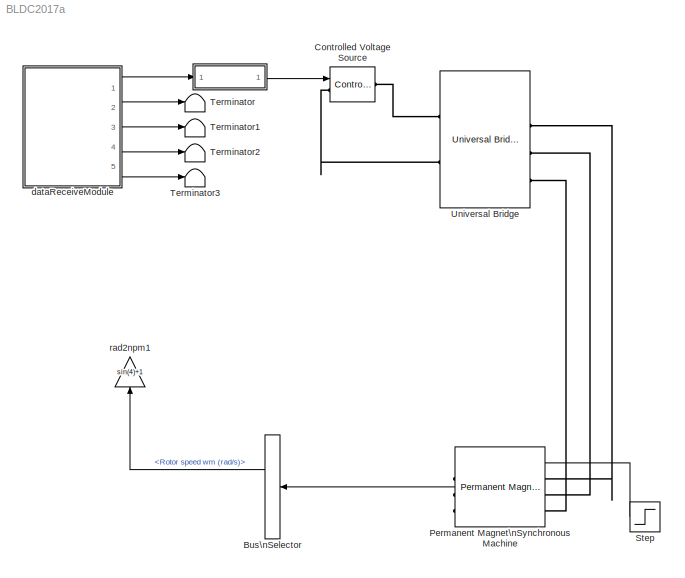
MODEL BLDC2017a
KIND model
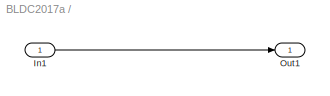
BLOCK [SubSystem]  
  Ports = [1, 1]
  SID = 29
BLOCK [Inport]  /In1
  SID = 30
BLOCK [Outport]  /Out1
  SID = 31
BLOCK [BusSelector] Bus\nSelector
  OutputSignals = Rotor speed wm (rad/s),Electromagnetic torque Te (N*m)
  Ports = [1, 2]
  SID = 44
BLOCK [Reference] Controlled Voltage Source  REF=powerlib/Electrical Sources/Controlled Voltage Source
  Amplitude = 0
  Frequency = 0
  Initialize = on
  Measurements = None
  Phase = 0
  Ports = [1, 0, 0, 0, 0, 1, 1]
  RTWMemSecDataConstants = Inherit from model
  RTWMemSecDataInternal = Inherit from model
  RTWMemSecDataParameters = Inherit from model
  RTWMemSecFuncExecute = Inherit from model
  RTWMemSecFuncInitTerm = Inherit from model
  SID = 37
  SourceBlock = powerlib/Electrical Sources/Controlled Voltage Source
  SourceType = Controlled Voltage Source
  Source_Type = AC
BLOCK [Reference] Permanent Magnet\nSynchronous Machine  REF=powerlib/Machines/Permanent Magnet Synchronous Machine
  Flat = 120
  Flux = 0.1194
  FluxDistribution = Sinusoidal
  Inductance = 8.5e-3
  InitialConditions = [0,0, 0,0]
  InitialConditions5ph = [0 0 0 0 0 0]
  IterativeDiscreteModel = Trapezoidal non iterative
  La = 0.000395
  MachineConstant = Flux linkage established by magnets (V.s)
  MeasurementBus = off
  Mechanical = [0.0027 0.0004924 4 0]
  MechanicalLoad = Torque Tm
  NbPhases = 3
  PolePairs = 4
  Ports = [1, 1, 0, 0, 0, 3]
  PresetModel = No
  RTWMemSecDataConstants = Inherit from model
  RTWMemSecDataInternal = Inherit from model
  RTWMemSecDataParameters = Inherit from model
  RTWMemSecFuncExecute = Inherit from model
  RTWMemSecFuncInitTerm = Inherit from model
  RefAngle = 90 degrees behind phase A axis (modified Park)
  Resistance = 0.0485
  RotorType = Round
  SID = 40
  ShowDetailedParameters = on
  SourceBlock = powerlib/Machines/Permanent Magnet Synchronous Machine
  SourceType = Permanent Magnet Synchronous Machine
  TorqueCst = 0.7164
  TsBlock = -1
  TsPowergui = 0
  VoltageCst = 86.6271
  dqInductances = [8.5e-3,8.5e-3]
BLOCK [Step] Step
  SID = 41
  SampleTime = 0
BLOCK [Terminator] Terminator
  SID = 17
BLOCK [Terminator] Terminator1
  SID = 18
BLOCK [Terminator] Terminator2
  SID = 19
BLOCK [Terminator] Terminator3
  SID = 20
BLOCK [Reference] Universal Bridge  REF=powerlib/Power Electronics/Universal Bridge
  Arms = 3
  Device = IGBT / Diodes
  ForwardVoltage = 0
  ForwardVoltages = [  0  0  ]
  GTOparameters = [ 10e-6 , 20e-6 ]
  IGBTparameters = [ 1e-6 , 2e-6 ]
  Lon = 0
  Measurements = None
  Measurements_2 = None
  Ports = [1, 0, 0, 0, 0, 3, 2]
  RTWMemSecDataConstants = Inherit from model
  RTWMemSecDataInternal = Inherit from model
  RTWMemSecDataParameters = Inherit from model
  RTWMemSecFuncExecute = Inherit from model
  RTWMemSecFuncInitTerm = Inherit from model
  Ron = 1e-3
  SID = 32
  SnubberCapacitance = inf
  SnubberResistance = 1e5
  SourceBlock = powerlib/Power Electronics/Universal Bridge
  SourceType = Universal Bridge
  converterType = Rectifier
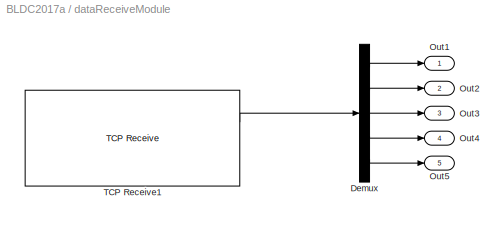
BLOCK [SubSystem] dataReceiveModule
  Ports = [0, 5]
  SID = 2
BLOCK [Demux] dataReceiveModule/Demux
  Outputs = 5
  Ports = [1, 5]
  SID = 6
BLOCK [Outport] dataReceiveModule/Out1
  SID = 7
BLOCK [Outport] dataReceiveModule/Out2
  Port = 2
  SID = 8
BLOCK [Outport] dataReceiveModule/Out3
  Port = 3
  SID = 9
BLOCK [Outport] dataReceiveModule/Out4
  Port = 4
  SID = 10
BLOCK [Outport] dataReceiveModule/Out5
  Port = 5
  SID = 11
BLOCK [Reference] dataReceiveModule/TCP Receive1  REF=slrealtimeiplib/TCP Receive
  Ports = [1, 2]
  SID = 39
  SourceBlock = slrealtimeiplib/TCP Receive
  SourceType = slrealtimetcpreceive
  rcvWidth = 16
  sampleTime = -1
  socketAddPortVal = <empty>
BLOCK [Gain] rad2npm1
  Gain = sin(4)+1
  SID = 45
LINE  /In1:1 ->  /Out1:1
LINE  :1 -> Controlled Voltage Source:1
LINE Bus\nSelector:1 -> rad2npm1:1
LINE Permanent Magnet\nSynchronous Machine:1 -> Bus\nSelector:1
LINE Step:1 -> Permanent Magnet\nSynchronous Machine:1
LINE dataReceiveModule/Demux:1 -> dataReceiveModule/Out1:1
LINE dataReceiveModule/Demux:2 -> dataReceiveModule/Out2:1
LINE dataReceiveModule/Demux:3 -> dataReceiveModule/Out3:1
LINE dataReceiveModule/Demux:4 -> dataReceiveModule/Out4:1
LINE dataReceiveModule/Demux:5 -> dataReceiveModule/Out5:1
LINE dataReceiveModule/TCP Receive1:1 -> dataReceiveModule/Demux:1
LINE dataReceiveModule:1 ->  :1
LINE dataReceiveModule:2 -> Terminator:1
LINE dataReceiveModule:3 -> Terminator1:1
LINE dataReceiveModule:4 -> Terminator2:1
LINE dataReceiveModule:5 -> Terminator3:1
PLINE Controlled Voltage Source:LConn1 -- Universal Bridge:RConn2
PLINE Controlled Voltage Source:RConn1 -- Universal Bridge:RConn1
PLINE Permanent Magnet\nSynchronous Machine:LConn1 -- Universal Bridge:LConn1
PLINE Permanent Magnet\nSynchronous Machine:LConn2 -- Universal Bridge:LConn2
PLINE Permanent Magnet\nSynchronous Machine:LConn3 -- Universal Bridge:LConn3
